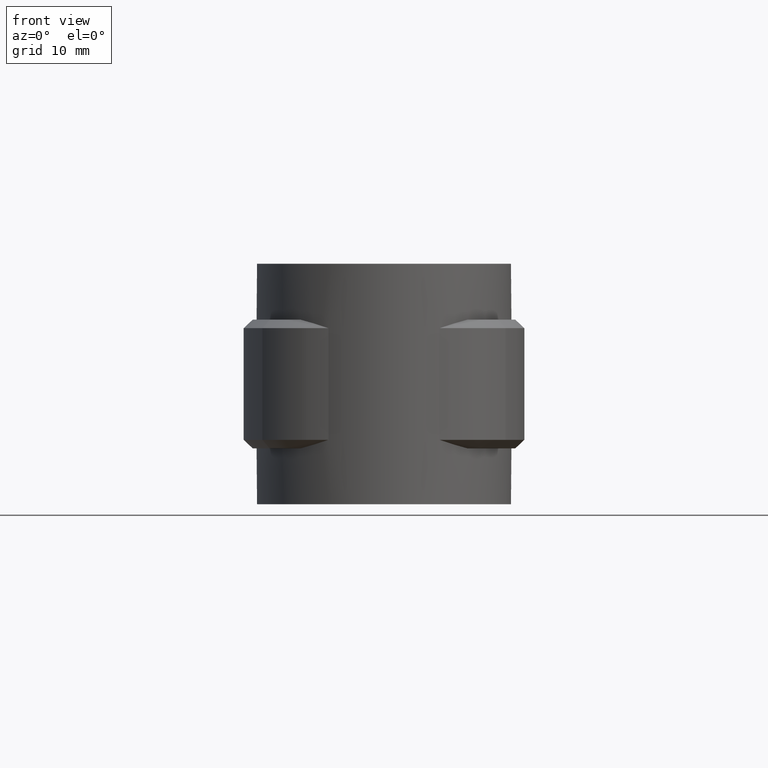
[diagram: clean part render]
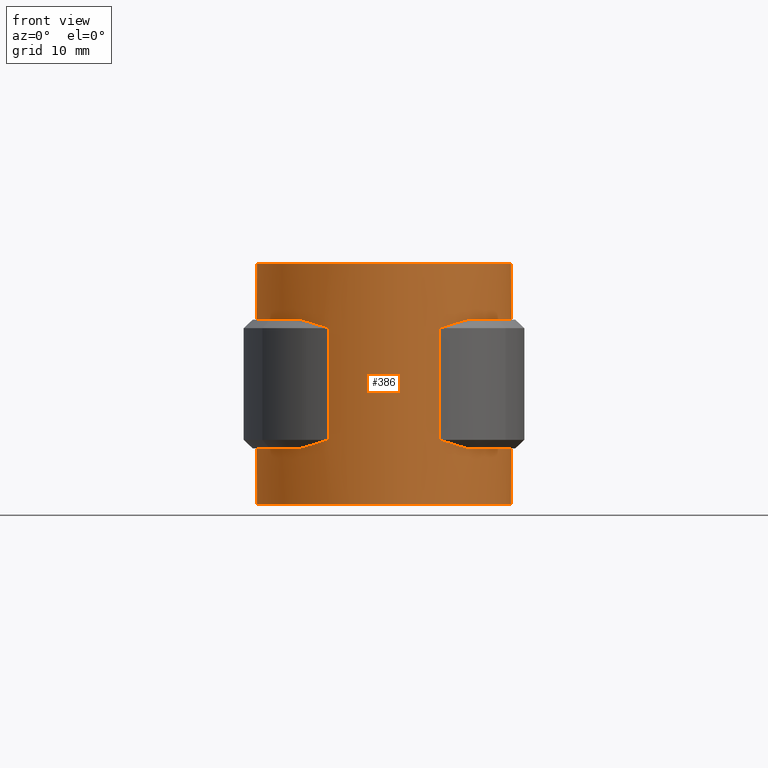
[diagram: same view with one face highlighted and labeled with its STEP entity id]
A machine part, front view. The second image highlights one B-rep face of the part: STEP entity #386.
In plain terms, the highlighted cylindrical surface (partial cylindrical patch) has radius 14.855 mm, axis along (0, 0, -1).
Its self-contained STEP definition (entity closure, byte-faithful):
#386 = ADVANCED_FACE( '', ( #657 ), #658, .T. );
#657 = FACE_OUTER_BOUND( '', #1299, .T. );
#658 = CYLINDRICAL_SURFACE( '', #1300, 14.8550000000000 );
#1299 = EDGE_LOOP( '', ( #3013, #3014, #3015, #3016, #3017, #3018, #3019, #3020, #3021, #3022, #3023, #3024, #3025, #3026, #3027, #3028 ) );
#1300 = AXIS2_PLACEMENT_3D( '', #3029, #3030, #3031 );
#3013 = ORIENTED_EDGE( '', *, *, #4389, .F. );
#3014 = ORIENTED_EDGE( '', *, *, #4390, .T. );
#3015 = ORIENTED_EDGE( '', *, *, #4391, .T. );
#3016 = ORIENTED_EDGE( '', *, *, #4392, .T. );
#3017 = ORIENTED_EDGE( '', *, *, #4393, .T. );
#3018 = ORIENTED_EDGE( '', *, *, #4394, .T. );
#3019 = ORIENTED_EDGE( '', *, *, #4395, .T. );
#3020 = ORIENTED_EDGE( '', *, *, #4293, .F. );
#3021 = ORIENTED_EDGE( '', *, *, #4396, .T. );
#3022 = ORIENTED_EDGE( '', *, *, #4385, .T. );
#3023 = ORIENTED_EDGE( '', *, *, #4397, .T. );
#3024 = ORIENTED_EDGE( '', *, *, #4398, .T. );
#3025 = ORIENTED_EDGE( '', *, *, #4399, .F. );
#3026 = ORIENTED_EDGE( '', *, *, #4296, .F. );
#3027 = ORIENTED_EDGE( '', *, *, #4400, .F. );
#3028 = ORIENTED_EDGE( '', *, *, #4401, .T. );
#3029 = CARTESIAN_POINT( '', ( 0.000000000000000, 0.000000000000000, -26.5000000000000 ) );
#3030 = DIRECTION( '', ( 0.000000000000000, 0.000000000000000, -1.00000000000000 ) );
#3031 = DIRECTION( '', ( 0.000000000000000, -1.00000000000000, 0.000000000000000 ) );
#4293 = EDGE_CURVE( '', #4893, #4895, #4896, .T. );
#4296 = EDGE_CURVE( '', #4898, #4885, #4900, .T. );
#4385 = EDGE_CURVE( '', #5057, #5055, #5058, .T. );
#4389 = EDGE_CURVE( '', #5062, #5063, #5064, .T. );
#4390 = EDGE_CURVE( '', #5062, #5065, #5066, .T. );
#4391 = EDGE_CURVE( '', #5065, #5067, #5068, .T. );
#4392 = EDGE_CURVE( '', #5067, #5069, #5070, .T. );
#4393 = EDGE_CURVE( '', #5069, #5071, #5072, .T. );
#4394 = EDGE_CURVE( '', #5071, #5073, #5074, .T. );
#4395 = EDGE_CURVE( '', #5073, #4895, #5075, .T. );
#4396 = EDGE_CURVE( '', #4893, #5057, #5076, .T. );
#4397 = EDGE_CURVE( '', #5055, #5077, #5078, .F. );
#4398 = EDGE_CURVE( '', #5077, #5079, #5080, .T. );
#4399 = EDGE_CURVE( '', #4885, #5079, #5081, .T. );
#4400 = EDGE_CURVE( '', #5082, #4898, #5083, .T. );
#4401 = EDGE_CURVE( '', #5082, #5063, #5084, .T. );
#4885 = VERTEX_POINT( '', #6427 );
#4893 = VERTEX_POINT( '', #6443 );
#4895 = VERTEX_POINT( '', #6446 );
#4896 = LINE( '', #6447, #6448 );
#4898 = VERTEX_POINT( '', #6451 );
#4900 = LINE( '', #6454, #6455 );
#5055 = VERTEX_POINT( '', #6998 );
#5057 = VERTEX_POINT( '', #7000 );
#5058 = B_SPLINE_CURVE_WITH_KNOTS( '', 3, ( #7001, #7002, #7003, #7004 ), .UNSPECIFIED., .F., .F., ( 4, 4 ), ( 2.60208521396521E-018, 0.00404333258090045 ), .UNSPECIFIED. );
#5062 = VERTEX_POINT( '', #7008 );
#5063 = VERTEX_POINT( '', #7009 );
#5064 = CIRCLE( '', #7010, 14.8550000000000 );
#5065 = VERTEX_POINT( '', #7011 );
#5066 = B_SPLINE_CURVE_WITH_KNOTS( '', 3, ( #7012, #7013, #7014, #7015 ), .UNSPECIFIED., .F., .F., ( 4, 4 ), ( 6.25463444138550E-018, 0.00404333258090043 ), .UNSPECIFIED. );
#5067 = VERTEX_POINT( '', #7016 );
#5068 = LINE( '', #7017, #7018 );
#5069 = VERTEX_POINT( '', #7019 );
#5070 = B_SPLINE_CURVE_WITH_KNOTS( '', 3, ( #7020, #7021, #7022, #7023 ), .UNSPECIFIED., .F., .F., ( 4, 4 ), ( 0.000000000000000, 0.00404333258090045 ), .UNSPECIFIED. );
#5071 = VERTEX_POINT( '', #7024 );
#5072 = CIRCLE( '', #7025, 14.8550000000000 );
#5073 = VERTEX_POINT( '', #7026 );
#5074 = LINE( '', #7027, #7028 );
#5075 = CIRCLE( '', #7029, 14.8550000000000 );
#5076 = CIRCLE( '', #7030, 14.8550000000000 );
#5077 = VERTEX_POINT( '', #7031 );
#5078 = LINE( '', #7032, #7033 );
#5079 = VERTEX_POINT( '', #7034 );
#5080 = B_SPLINE_CURVE_WITH_KNOTS( '', 3, ( #7035, #7036, #7037, #7038 ), .UNSPECIFIED., .F., .F., ( 4, 4 ), ( 0.000000000000000, 0.00404333258090045 ), .UNSPECIFIED. );
#5081 = CIRCLE( '', #7039, 14.8550000000000 );
#5082 = VERTEX_POINT( '', #7040 );
#5083 = CIRCLE( '', #7041, 14.8550000000000 );
#5084 = LINE( '', #7042, #7043 );
#6427 = CARTESIAN_POINT( '', ( -6.09999999999998, 13.5447785142467, -20.0000000000000 ) );
#6443 = CARTESIAN_POINT( '', ( -6.09999999999998, 13.5447785142467, -5.00000000000000 ) );
#6446 = CARTESIAN_POINT( '', ( -6.09999999999998, 13.5447785142467, 1.50000000000000 ) );
#6447 = CARTESIAN_POINT( '', ( -6.09999999999998, 13.5447785142467, -26.5000000000000 ) );
#6448 = VECTOR( '', #8133, 1000.00000000000 );
#6451 = CARTESIAN_POINT( '', ( -6.09999999999998, 13.5447785142467, -26.5000000000000 ) );
#6454 = CARTESIAN_POINT( '', ( -6.09999999999998, 13.5447785142467, -26.5000000000000 ) );
#6455 = VECTOR( '', #8136, 1000.00000000000 );
#6998 = CARTESIAN_POINT( '', ( -6.46086723119606, -13.3764053325569, -6.00000000000000 ) );
#7000 = CARTESIAN_POINT( '', ( -9.73314217656569, -11.2221641571828, -5.00000000000000 ) );
#7001 = CARTESIAN_POINT( '', ( -9.73314217656568, -11.2221641571828, -5.00000000000000 ) );
#7002 = CARTESIAN_POINT( '', ( -8.72387938721100, -12.0975120922795, -5.26121688312711 ) );
#7003 = CARTESIAN_POINT( '', ( -7.63240176104512, -12.8105485970636, -5.60306218203270 ) );
#7004 = CARTESIAN_POINT( '', ( -6.46086723119606, -13.3764053325569, -6.00000000000000 ) );
#7008 = CARTESIAN_POINT( '', ( 9.73314217656568, -11.2221641571828, -20.0000000000000 ) );
#7009 = CARTESIAN_POINT( '', ( 6.10000000000001, 13.5447785142467, -20.0000000000000 ) );
#7010 = AXIS2_PLACEMENT_3D( '', #8254, #8255, #8256 );
#7011 = CARTESIAN_POINT( '', ( 6.46086723119606, -13.3764053325569, -19.0000000000000 ) );
#7012 = CARTESIAN_POINT( '', ( 9.73314217656567, -11.2221641571828, -20.0000000000000 ) );
#7013 = CARTESIAN_POINT( '', ( 8.72387938721100, -12.0975120922795, -19.7387831168729 ) );
#7014 = CARTESIAN_POINT( '', ( 7.63240176104512, -12.8105485970636, -19.3969378179673 ) );
#7015 = CARTESIAN_POINT( '', ( 6.46086723119606, -13.3764053325569, -19.0000000000000 ) );
#7016 = CARTESIAN_POINT( '', ( 6.46086723119606, -13.3764053325569, -6.00000000000000 ) );
#7017 = CARTESIAN_POINT( '', ( 6.46086723119606, -13.3764053325569, -12.5000000000000 ) );
#7018 = VECTOR( '', #8257, 1000.00000000000 );
#7019 = CARTESIAN_POINT( '', ( 9.73314217656569, -11.2221641571828, -5.00000000000000 ) );
#7020 = CARTESIAN_POINT( '', ( 6.46086723119606, -13.3764053325569, -6.00000000000000 ) );
#7021 = CARTESIAN_POINT( '', ( 7.63240176104513, -12.8105485970636, -5.60306218203270 ) );
#7022 = CARTESIAN_POINT( '', ( 8.72387938721101, -12.0975120922795, -5.26121688312711 ) );
#7023 = CARTESIAN_POINT( '', ( 9.73314217656569, -11.2221641571828, -5.00000000000000 ) );
#7024 = CARTESIAN_POINT( '', ( 6.10000000000001, 13.5447785142467, -5.00000000000000 ) );
#7025 = AXIS2_PLACEMENT_3D( '', #8258, #8259, #8260 );
#7026 = CARTESIAN_POINT( '', ( 6.10000000000001, 13.5447785142467, 1.50000000000000 ) );
#7027 = CARTESIAN_POINT( '', ( 6.10000000000001, 13.5447785142467, -26.5000000000000 ) );
#7028 = VECTOR( '', #8261, 1000.00000000000 );
#7029 = AXIS2_PLACEMENT_3D( '', #8262, #8263, #8264 );
#7030 = AXIS2_PLACEMENT_3D( '', #8265, #8266, #8267 );
#7031 = CARTESIAN_POINT( '', ( -6.46086723119606, -13.3764053325569, -19.0000000000000 ) );
#7032 = CARTESIAN_POINT( '', ( -6.46086723119606, -13.3764053325569, -12.5000000000000 ) );
#7033 = VECTOR( '', #8268, 1000.00000000000 );
#7034 = CARTESIAN_POINT( '', ( -9.73314217656569, -11.2221641571828, -20.0000000000000 ) );
#7035 = CARTESIAN_POINT( '', ( -6.46086723119606, -13.3764053325569, -19.0000000000000 ) );
#7036 = CARTESIAN_POINT( '', ( -7.63240176104513, -12.8105485970636, -19.3969378179673 ) );
#7037 = CARTESIAN_POINT( '', ( -8.72387938721100, -12.0975120922795, -19.7387831168729 ) );
#7038 = CARTESIAN_POINT( '', ( -9.73314217656568, -11.2221641571828, -20.0000000000000 ) );
#7039 = AXIS2_PLACEMENT_3D( '', #8269, #8270, #8271 );
#7040 = CARTESIAN_POINT( '', ( 6.10000000000001, 13.5447785142467, -26.5000000000000 ) );
#7041 = AXIS2_PLACEMENT_3D( '', #8272, #8273, #8274 );
#7042 = CARTESIAN_POINT( '', ( 6.10000000000001, 13.5447785142467, -26.5000000000000 ) );
#7043 = VECTOR( '', #8275, 1000.00000000000 );
#8133 = DIRECTION( '', ( 0.000000000000000, 0.000000000000000, 1.00000000000000 ) );
#8136 = DIRECTION( '', ( 0.000000000000000, 0.000000000000000, 1.00000000000000 ) );
#8254 = CARTESIAN_POINT( '', ( 0.000000000000000, 0.000000000000000, -20.0000000000000 ) );
#8255 = DIRECTION( '', ( 0.000000000000000, 0.000000000000000, 1.00000000000000 ) );
#8256 = DIRECTION( '', ( 1.00000000000000, 0.000000000000000, 0.000000000000000 ) );
#8257 = DIRECTION( '', ( 0.000000000000000, 0.000000000000000, 1.00000000000000 ) );
#8258 = CARTESIAN_POINT( '', ( 0.000000000000000, 0.000000000000000, -5.00000000000000 ) );
#8259 = DIRECTION( '', ( 0.000000000000000, 0.000000000000000, 1.00000000000000 ) );
#8260 = DIRECTION( '', ( 1.00000000000000, 0.000000000000000, 0.000000000000000 ) );
#8261 = DIRECTION( '', ( 0.000000000000000, 0.000000000000000, 1.00000000000000 ) );
#8262 = CARTESIAN_POINT( '', ( 0.000000000000000, 0.000000000000000, 1.50000000000000 ) );
#8263 = DIRECTION( '', ( 0.000000000000000, 0.000000000000000, -1.00000000000000 ) );
#8264 = DIRECTION( '', ( 1.00000000000000, 0.000000000000000, 0.000000000000000 ) );
#8265 = CARTESIAN_POINT( '', ( 0.000000000000000, 0.000000000000000, -5.00000000000000 ) );
#8266 = DIRECTION( '', ( 0.000000000000000, 0.000000000000000, 1.00000000000000 ) );
#8267 = DIRECTION( '', ( 1.00000000000000, 0.000000000000000, 0.000000000000000 ) );
#8268 = DIRECTION( '', ( 0.000000000000000, 0.000000000000000, 1.00000000000000 ) );
#8269 = CARTESIAN_POINT( '', ( 0.000000000000000, 0.000000000000000, -20.0000000000000 ) );
#8270 = DIRECTION( '', ( 0.000000000000000, 0.000000000000000, 1.00000000000000 ) );
#8271 = DIRECTION( '', ( 1.00000000000000, 0.000000000000000, 0.000000000000000 ) );
#8272 = CARTESIAN_POINT( '', ( 0.000000000000000, 0.000000000000000, -26.5000000000000 ) );
#8273 = DIRECTION( '', ( 0.000000000000000, 0.000000000000000, -1.00000000000000 ) );
#8274 = DIRECTION( '', ( 1.00000000000000, 0.000000000000000, 0.000000000000000 ) );
#8275 = DIRECTION( '', ( 0.000000000000000, 0.000000000000000, 1.00000000000000 ) );